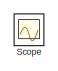
[diagram: root canvas - part 1/2, top left region]
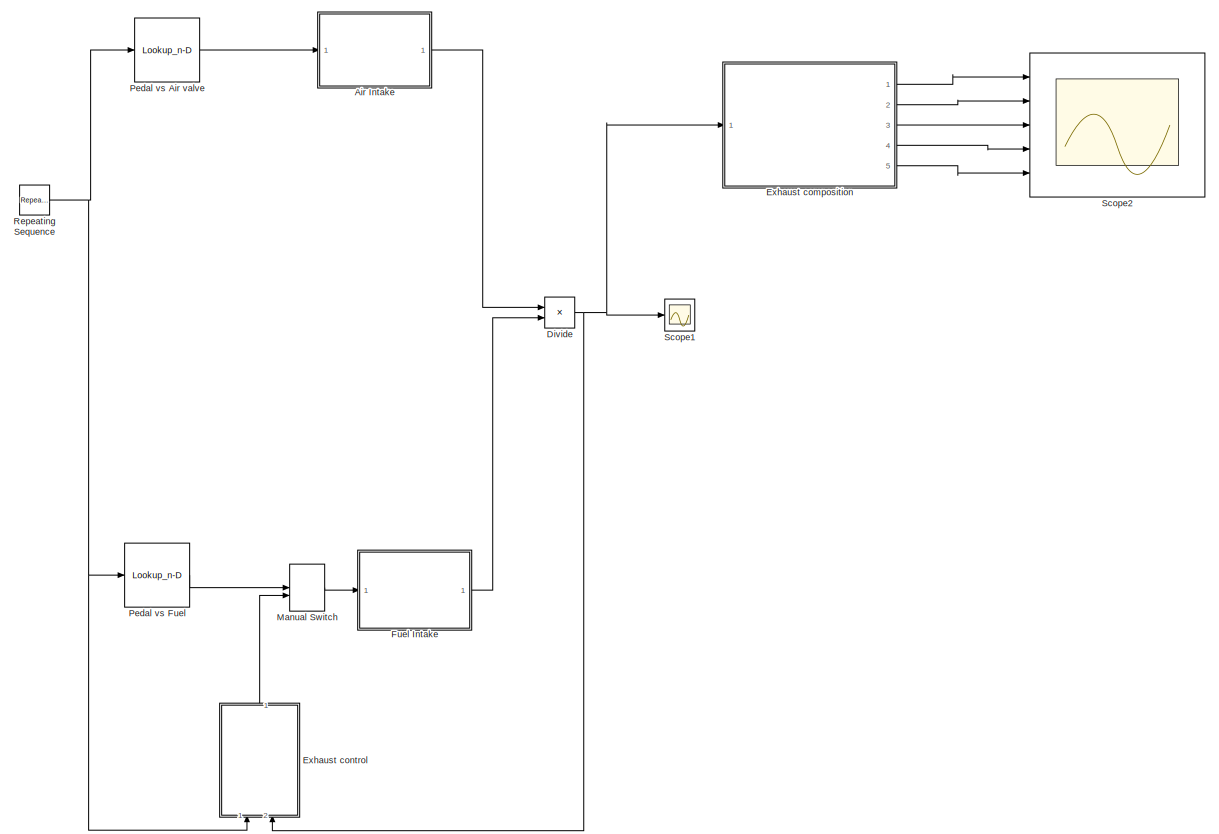
[diagram: root canvas - part 2/2, most of the canvas]
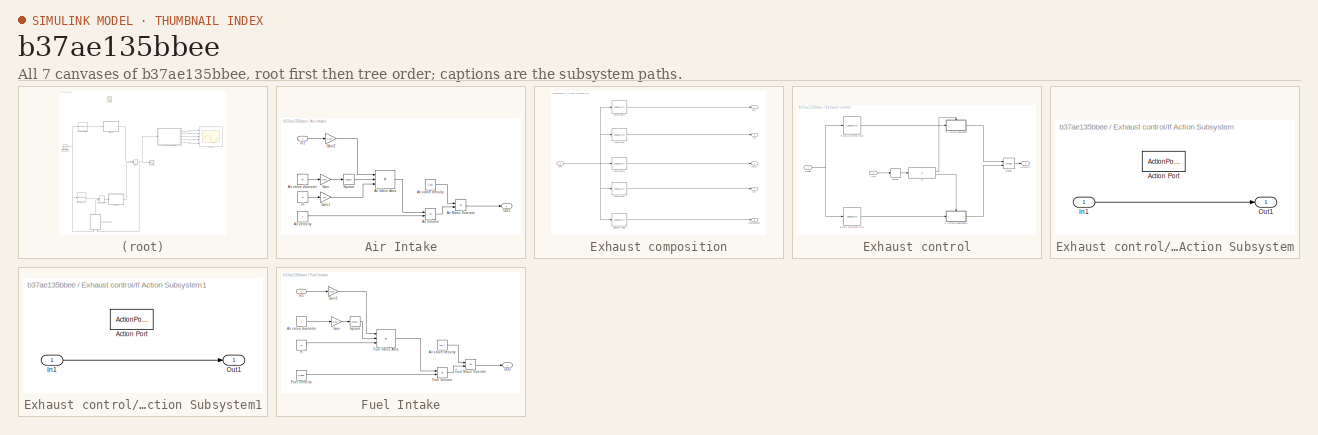
[diagram: thumbnail index - all 7 canvases of the model, root first then tree order]
MODEL slx_b37ae135bbee
KIND model
CONFIG AbsTol = auto
CONFIG MaxStep = auto
CONFIG MinStep = auto
CONFIG RelTol = 0.1
CONFIG SampleTimeConstraint = Unconstrained
CONFIG Solver = VariableStepAuto
CONFIG SolverMode = SingleTasking
CONFIG SolverName = VariableStepAuto
CONFIG StartTime = 0.0
CONFIG StopTime = 5
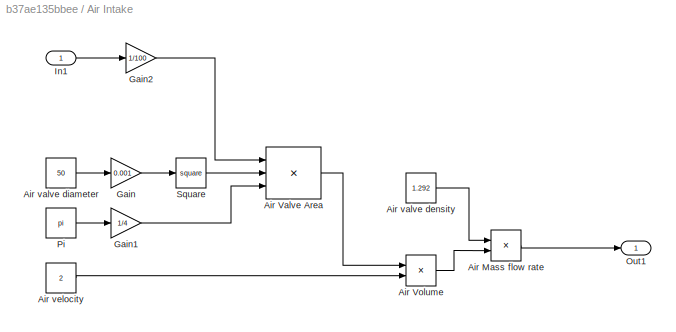
BLOCK [SubSystem] Air Intake
  Ports = [1, 1]
  RequestExecContextInheritance = off
BLOCK [Product] Air Intake/Air Mass flow rate
  InputSameDT = off
  OutDataTypeStr = Inherit: Inherit via internal rule
  Ports = [2, 1]
  RndMeth = Floor
  SaturateOnIntegerOverflow = off
BLOCK [Product] Air Intake/Air Valve Area
  InputSameDT = off
  Inputs = 3
  OutDataTypeStr = Inherit: Inherit via internal rule
  Ports = [3, 1]
  RndMeth = Floor
  SaturateOnIntegerOverflow = off
BLOCK [Product] Air Intake/Air Volume
  InputSameDT = off
  OutDataTypeStr = Inherit: Inherit via internal rule
  Ports = [2, 1]
  RndMeth = Floor
  SaturateOnIntegerOverflow = off
BLOCK [Constant] Air Intake/Air valve density
  Value = 1.292
BLOCK [Constant] Air Intake/Air valve diameter
  Value = 50
BLOCK [Constant] Air Intake/Air velocity
  Value = 2
BLOCK [Gain] Air Intake/Gain
  Gain = 0.001
  OutDataTypeStr = Inherit: Inherit via internal rule
  ParamDataTypeStr = Inherit: Inherit via internal rule
  SaturateOnIntegerOverflow = off
BLOCK [Gain] Air Intake/Gain1
  Gain = 1/4
  OutDataTypeStr = Inherit: Inherit via internal rule
  ParamDataTypeStr = Inherit: Inherit via internal rule
  SaturateOnIntegerOverflow = off
BLOCK [Gain] Air Intake/Gain2
  Gain = 1/100
  OutDataTypeStr = Inherit: Inherit via internal rule
  ParamDataTypeStr = Inherit: Inherit via internal rule
  SaturateOnIntegerOverflow = off
BLOCK [Inport] Air Intake/In1
  IconDisplay = Port number
BLOCK [Outport] Air Intake/Out1
  IconDisplay = Port number
BLOCK [Constant] Air Intake/Pi
  Value = pi
BLOCK [Math] Air Intake/Square
  Operator = square
  Ports = [1, 1]
BLOCK [Product] Divide
  InputSameDT = off
  Inputs = */
  OutDataTypeStr = Inherit: Inherit via internal rule
  Ports = [2, 1]
  RndMeth = Floor
  SaturateOnIntegerOverflow = off
BLOCK [SubSystem] Exhaust composition
  Ports = [1, 5]
  RequestExecContextInheritance = off
BLOCK [Inport] Exhaust composition/AFR
  IconDisplay = Port number
BLOCK [Lookup_n-D] Exhaust composition/AFR vs CO
  BreakpointsForDimension1 = [10 14.5 14.6 14.7 14.8 15 15.5 18]
  BreakpointsForDimension1FirstPoint = 5.4517133956386
  InternalRulePriority = Speed
  NumberOfTableDimensions = 1
  Ports = [1, 1]
  RndMeth = Simplest
  Table = [12 8 4 0.1 0.1 0.05 0.03 0.015]
BLOCK [Lookup_n-D] Exhaust composition/AFR vs CO2
  BreakpointsForDimension1 = [10 14.5 14.6 14.7 14.8 15 15.5 18]
  BreakpointsForDimension1FirstPoint = 5.4517133956386
  InternalRulePriority = Speed
  NumberOfTableDimensions = 1
  Ports = [1, 1]
  RndMeth = Simplest
  Table = [13 13 13.5 14 14 15 15 16]
BLOCK [Lookup_n-D] Exhaust composition/AFR vs NOx 
  BreakpointsForDimension1 = [10 14.5 14.6 14.7 14.8 15 15.5 18]
  BreakpointsForDimension1FirstPoint = 5.4517133956386
  InternalRulePriority = Speed
  NumberOfTableDimensions = 1
  Ports = [1, 1]
  RndMeth = Simplest
  Table = [1 2.5 5 10 20 30 50 65]
BLOCK [Lookup_n-D] Exhaust composition/AFR vs WV
  BreakpointsForDimension1 = [10 14.5 14.6 14.7 14.8 15 15.5 18]
  BreakpointsForDimension1FirstPoint = 5.4517133956386
  InternalRulePriority = Speed
  NumberOfTableDimensions = 1
  Ports = [1, 1]
  RndMeth = Simplest
  Table = [12 12 12.5 13 13 13 14 14]
BLOCK [Outport] Exhaust composition/CO
  IconDisplay = Port number
  Port = 2
BLOCK [Outport] Exhaust composition/CO2
  IconDisplay = Port number
  Port = 3
BLOCK [Outport] Exhaust composition/Hydrocarbon
  IconDisplay = Port number
  Port = 5
BLOCK [Outport] Exhaust composition/NOx
  IconDisplay = Port number
BLOCK [Lookup_n-D] Exhaust composition/Unburnt fuel1
  BreakpointsForDimension1 = [10 14.1 14.5 14.6 14.7 14.8 15 15.5 18]
  BreakpointsForDimension1FirstPoint = 5.4517133956386
  InternalRulePriority = Speed
  NumberOfTableDimensions = 1
  Ports = [1, 1]
  RndMeth = Simplest
  Table = [6 3 2 1.5 0 0 0 0 0]
BLOCK [Outport] Exhaust composition/WV
  IconDisplay = Port number
  Port = 4
BLOCK [SubSystem] Exhaust control
  Ports = [2, 1]
  RequestExecContextInheritance = off
BLOCK [Outport] Exhaust control/ADJUST
  IconDisplay = Port number
BLOCK [Inport] Exhaust control/AFR
  IconDisplay = Port number
  Port = 2
BLOCK [Delay] Exhaust control/Delay
  DelayLength = 1
  InitialCondition = 0
  InputPortMap = u0
  Ports = [1, 1]
BLOCK [Lookup_n-D] Exhaust control/FUEL DECREASE
  BreakpointsForDimension1 = [0.1 0.5 1 2 5 7 10]
  BreakpointsForDimension2 = [1 7 10 14.7 16 20 40]
  InternalRulePriority = Speed
  NumberOfTableDimensions = 1
  Ports = [1, 1]
  RndMeth = Simplest
  Table = [0.5\n15\n20\n20\n50\n70\n100]
BLOCK [Lookup_n-D] Exhaust control/FUEL INCREASE
  BreakpointsForDimension1 = [0.1 0.5 1 2 5 7 10]
  InternalRulePriority = Speed
  NumberOfTableDimensions = 1
  Ports = [1, 1]
  RndMeth = Simplest
  Table = [0.5\n15\n20\n20\n50\n70\n100]
BLOCK [If] Exhaust control/If
  IfExpression = u1>=14.7
  Ports = [1, 2]
BLOCK [SubSystem] Exhaust control/If Action Subsystem
  Ports = [1, 1, 0, 0, 0, 0, 0, 1]
  RequestExecContextInheritance = off
  TreatAsAtomicUnit = on
BLOCK [ActionPort] Exhaust control/If Action Subsystem/Action Port
  ActionType = then
BLOCK [Inport] Exhaust control/If Action Subsystem/In1
  IconDisplay = Port number
BLOCK [Outport] Exhaust control/If Action Subsystem/Out1
  IconDisplay = Port number
BLOCK [SubSystem] Exhaust control/If Action Subsystem1
  Ports = [1, 1, 0, 0, 0, 0, 0, 1]
  RequestExecContextInheritance = off
  TreatAsAtomicUnit = on
BLOCK [ActionPort] Exhaust control/If Action Subsystem1/Action Port
  ActionType = else
BLOCK [Inport] Exhaust control/If Action Subsystem1/In1
  IconDisplay = Port number
BLOCK [Outport] Exhaust control/If Action Subsystem1/Out1
  IconDisplay = Port number
BLOCK [Merge] Exhaust control/Merge
  Ports = [2, 1]
BLOCK [Inport] Exhaust control/Pedal
  IconDisplay = Port number
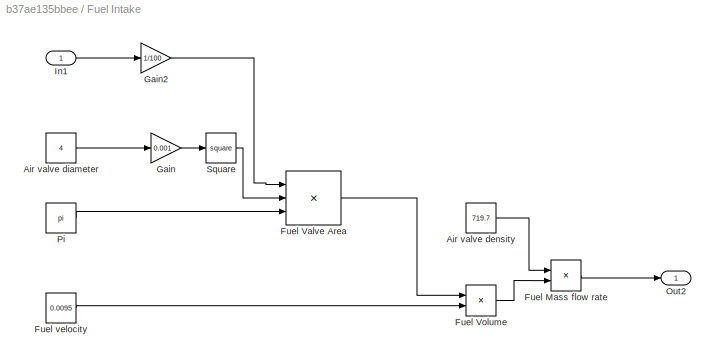
BLOCK [SubSystem] Fuel Intake
  Ports = [1, 1]
  RequestExecContextInheritance = off
BLOCK [Constant] Fuel Intake/Air valve density
  Value = 719.7
BLOCK [Constant] Fuel Intake/Air valve diameter
  Value = 4
BLOCK [Product] Fuel Intake/Fuel Mass flow rate
  InputSameDT = off
  OutDataTypeStr = Inherit: Inherit via internal rule
  Ports = [2, 1]
  RndMeth = Floor
  SaturateOnIntegerOverflow = off
BLOCK [Product] Fuel Intake/Fuel Valve Area
  InputSameDT = off
  Inputs = 3
  OutDataTypeStr = Inherit: Inherit via internal rule
  Ports = [3, 1]
  RndMeth = Floor
  SaturateOnIntegerOverflow = off
BLOCK [Product] Fuel Intake/Fuel Volume
  InputSameDT = off
  OutDataTypeStr = Inherit: Inherit via internal rule
  Ports = [2, 1]
  RndMeth = Floor
  SaturateOnIntegerOverflow = off
BLOCK [Constant] Fuel Intake/Fuel velocity
  Value = 0.0095
BLOCK [Gain] Fuel Intake/Gain
  Gain = 0.001
  OutDataTypeStr = Inherit: Inherit via internal rule
  ParamDataTypeStr = Inherit: Inherit via internal rule
  SaturateOnIntegerOverflow = off
BLOCK [Gain] Fuel Intake/Gain2
  Gain = 1/100
  OutDataTypeStr = Inherit: Inherit via internal rule
  ParamDataTypeStr = Inherit: Inherit via internal rule
  SaturateOnIntegerOverflow = off
BLOCK [Inport] Fuel Intake/In1
  IconDisplay = Port number
BLOCK [Outport] Fuel Intake/Out2
  IconDisplay = Port number
BLOCK [Constant] Fuel Intake/Pi
  Value = pi
BLOCK [Math] Fuel Intake/Square
  Operator = square
  Ports = [1, 1]
BLOCK [ManualSwitch] Manual Switch
  CurrentSetting = 0
BLOCK [Lookup_n-D] Pedal vs Air valve
  BreakpointsForDimension1 = [0.1 0.5 1 2 5 7 10]
  InternalRulePriority = Speed
  NumberOfTableDimensions = 1
  Ports = [1, 1]
  RndMeth = Simplest
  Table = [1\n15\n10\n20\n50\n70\n100]
BLOCK [Lookup_n-D] Pedal vs Fuel
  BreakpointsForDimension1 = [0.1 0.5 1 2 5 7 10]
  BreakpointsForDimension1FirstPoint = 5.4517133956386
  InternalRulePriority = Speed
  NumberOfTableDimensions = 1
  Ports = [1, 1]
  RndMeth = Simplest
  Table = [0.48\n15\n20\n18\n50\n65\n100]
BLOCK [Reference] Repeating Sequence  REF=simulink/Sources/Repeating
Sequence
  Ports = [0, 1]
  SourceBlock = simulink/Sources/Repeating\nSequence
  SourceType = Repeating table
BLOCK [Scope] Scope
  Floating = off
  IOType = viewer
  NumInputPorts = 1
  Ports = []
  ScopeSpecificationString = Simulink.scopes.TimeScopeBlockCfg('CurrentConfiguration', extmgr.ConfigurationSet(extmgr.Configuration('Core','General UI',true),extmgr.Configuration('Core','Source UI',true),extmgr.Configuration('Sources','WiredSimulink',true,'DataLoggingVariableName','ScopeData1'),extmgr.Configuration('Visuals','Time Domain',true,'SerializedDisplays',{struct('MinYLimReal','-10.00000','MaxYLimReal','10.00000','YL...<+1365ch>
BLOCK [Scope] Scope1
  Floating = off
  NumInputPorts = 1
  Ports = [1]
  ScopeSpecificationString = Simulink.scopes.TimeScopeBlockCfg('CurrentConfiguration', extmgr.ConfigurationSet(extmgr.Configuration('Core','General UI',true),extmgr.Configuration('Core','Source UI',true),extmgr.Configuration('Sources','WiredSimulink',true,'DataLoggingVariableName','ScopeData1','DataLoggingLimitDataPoints',true),extmgr.Configuration('Visuals','Time Domain',true,'SerializedDisplays',{struct('MinYLimReal','6.458...<+1471ch>
BLOCK [Scope] Scope2
  Floating = off
  NumInputPorts = 5
  Ports = [5]
  ScopeSpecificationString = Simulink.scopes.TimeScopeBlockCfg('CurrentConfiguration', extmgr.ConfigurationSet(extmgr.Configuration('Core','General UI',true),extmgr.Configuration('Core','Source UI',true),extmgr.Configuration('Sources','WiredSimulink',true,'DataLoggingVariableName','ScopeData1'),extmgr.Configuration('Visuals','Time Domain',true,'SerializedDisplays',{struct('MinYLimReal','-2.0387','MaxYLimReal','18.34827','YLab...<+1697ch>
LINE Air Intake/Air Mass flow rate:1 -> Air Intake/Out1:1
LINE Air Intake/Air Valve Area:1 -> Air Intake/Air Volume:1
LINE Air Intake/Air Volume:1 -> Air Intake/Air Mass flow rate:2
LINE Air Intake/Air valve density:1 -> Air Intake/Air Mass flow rate:1
LINE Air Intake/Air valve diameter:1 -> Air Intake/Gain:1
LINE Air Intake/Air velocity:1 -> Air Intake/Air Volume:2
LINE Air Intake/Gain1:1 -> Air Intake/Air Valve Area:3
LINE Air Intake/Gain2:1 -> Air Intake/Air Valve Area:1
LINE Air Intake/Gain:1 -> Air Intake/Square:1
LINE Air Intake/In1:1 -> Air Intake/Gain2:1
LINE Air Intake/Pi:1 -> Air Intake/Gain1:1
LINE Air Intake/Square:1 -> Air Intake/Air Valve Area:2
LINE Air Intake:1 -> Divide:1
NET Divide:1 -> Exhaust composition:1, Exhaust control:2, Scope1:1
LINE Exhaust composition/AFR vs CO2:1 -> Exhaust composition/CO2:1
LINE Exhaust composition/AFR vs CO:1 -> Exhaust composition/CO:1
LINE Exhaust composition/AFR vs NOx :1 -> Exhaust composition/NOx:1
LINE Exhaust composition/AFR vs WV:1 -> Exhaust composition/WV:1
NET Exhaust composition/AFR:1 -> Exhaust composition/AFR vs CO2:1, Exhaust composition/AFR vs CO:1, Exhaust composition/AFR vs NOx :1, Exhaust composition/AFR vs WV:1, Exhaust composition/Unburnt fuel1:1
LINE Exhaust composition/Unburnt fuel1:1 -> Exhaust composition/Hydrocarbon:1
LINE Exhaust composition:1 -> Scope2:1
LINE Exhaust composition:2 -> Scope2:2
LINE Exhaust composition:3 -> Scope2:3
LINE Exhaust composition:4 -> Scope2:4
LINE Exhaust composition:5 -> Scope2:5
LINE Exhaust control/AFR:1 -> Exhaust control/Delay:1
LINE Exhaust control/Delay:1 -> Exhaust control/If:1
LINE Exhaust control/FUEL DECREASE:1 -> Exhaust control/If Action Subsystem1:1
LINE Exhaust control/FUEL INCREASE:1 -> Exhaust control/If Action Subsystem:1
LINE Exhaust control/If Action Subsystem/In1:1 -> Exhaust control/If Action Subsystem/Out1:1
LINE Exhaust control/If Action Subsystem1/In1:1 -> Exhaust control/If Action Subsystem1/Out1:1
LINE Exhaust control/If Action Subsystem1:1 -> Exhaust control/Merge:2
LINE Exhaust control/If Action Subsystem:1 -> Exhaust control/Merge:1
LINE Exhaust control/If:1 -> Exhaust control/If Action Subsystem:ifaction
LINE Exhaust control/If:2 -> Exhaust control/If Action Subsystem1:ifaction
LINE Exhaust control/Merge:1 -> Exhaust control/ADJUST:1
NET Exhaust control/Pedal:1 -> Exhaust control/FUEL DECREASE:1, Exhaust control/FUEL INCREASE:1
LINE Exhaust control:1 -> Manual Switch:2
LINE Fuel Intake/Air valve density:1 -> Fuel Intake/Fuel Mass flow rate:1
LINE Fuel Intake/Air valve diameter:1 -> Fuel Intake/Gain:1
LINE Fuel Intake/Fuel Mass flow rate:1 -> Fuel Intake/Out2:1
LINE Fuel Intake/Fuel Valve Area:1 -> Fuel Intake/Fuel Volume:1
LINE Fuel Intake/Fuel Volume:1 -> Fuel Intake/Fuel Mass flow rate:2
LINE Fuel Intake/Fuel velocity:1 -> Fuel Intake/Fuel Volume:2
LINE Fuel Intake/Gain2:1 -> Fuel Intake/Fuel Valve Area:1
LINE Fuel Intake/Gain:1 -> Fuel Intake/Square:1
LINE Fuel Intake/In1:1 -> Fuel Intake/Gain2:1
LINE Fuel Intake/Pi:1 -> Fuel Intake/Fuel Valve Area:3
LINE Fuel Intake/Square:1 -> Fuel Intake/Fuel Valve Area:2
LINE Fuel Intake:1 -> Divide:2
LINE Manual Switch:1 -> Fuel Intake:1
LINE Pedal vs Air valve:1 -> Air Intake:1
LINE Pedal vs Fuel:1 -> Manual Switch:1
NET Repeating Sequence:1 -> Exhaust control:1, Pedal vs Air valve:1, Pedal vs Fuel:1
note: NET lines group one-source signal fan-out (src -> all destinations, sorted); 1:1 wires keep LINE
